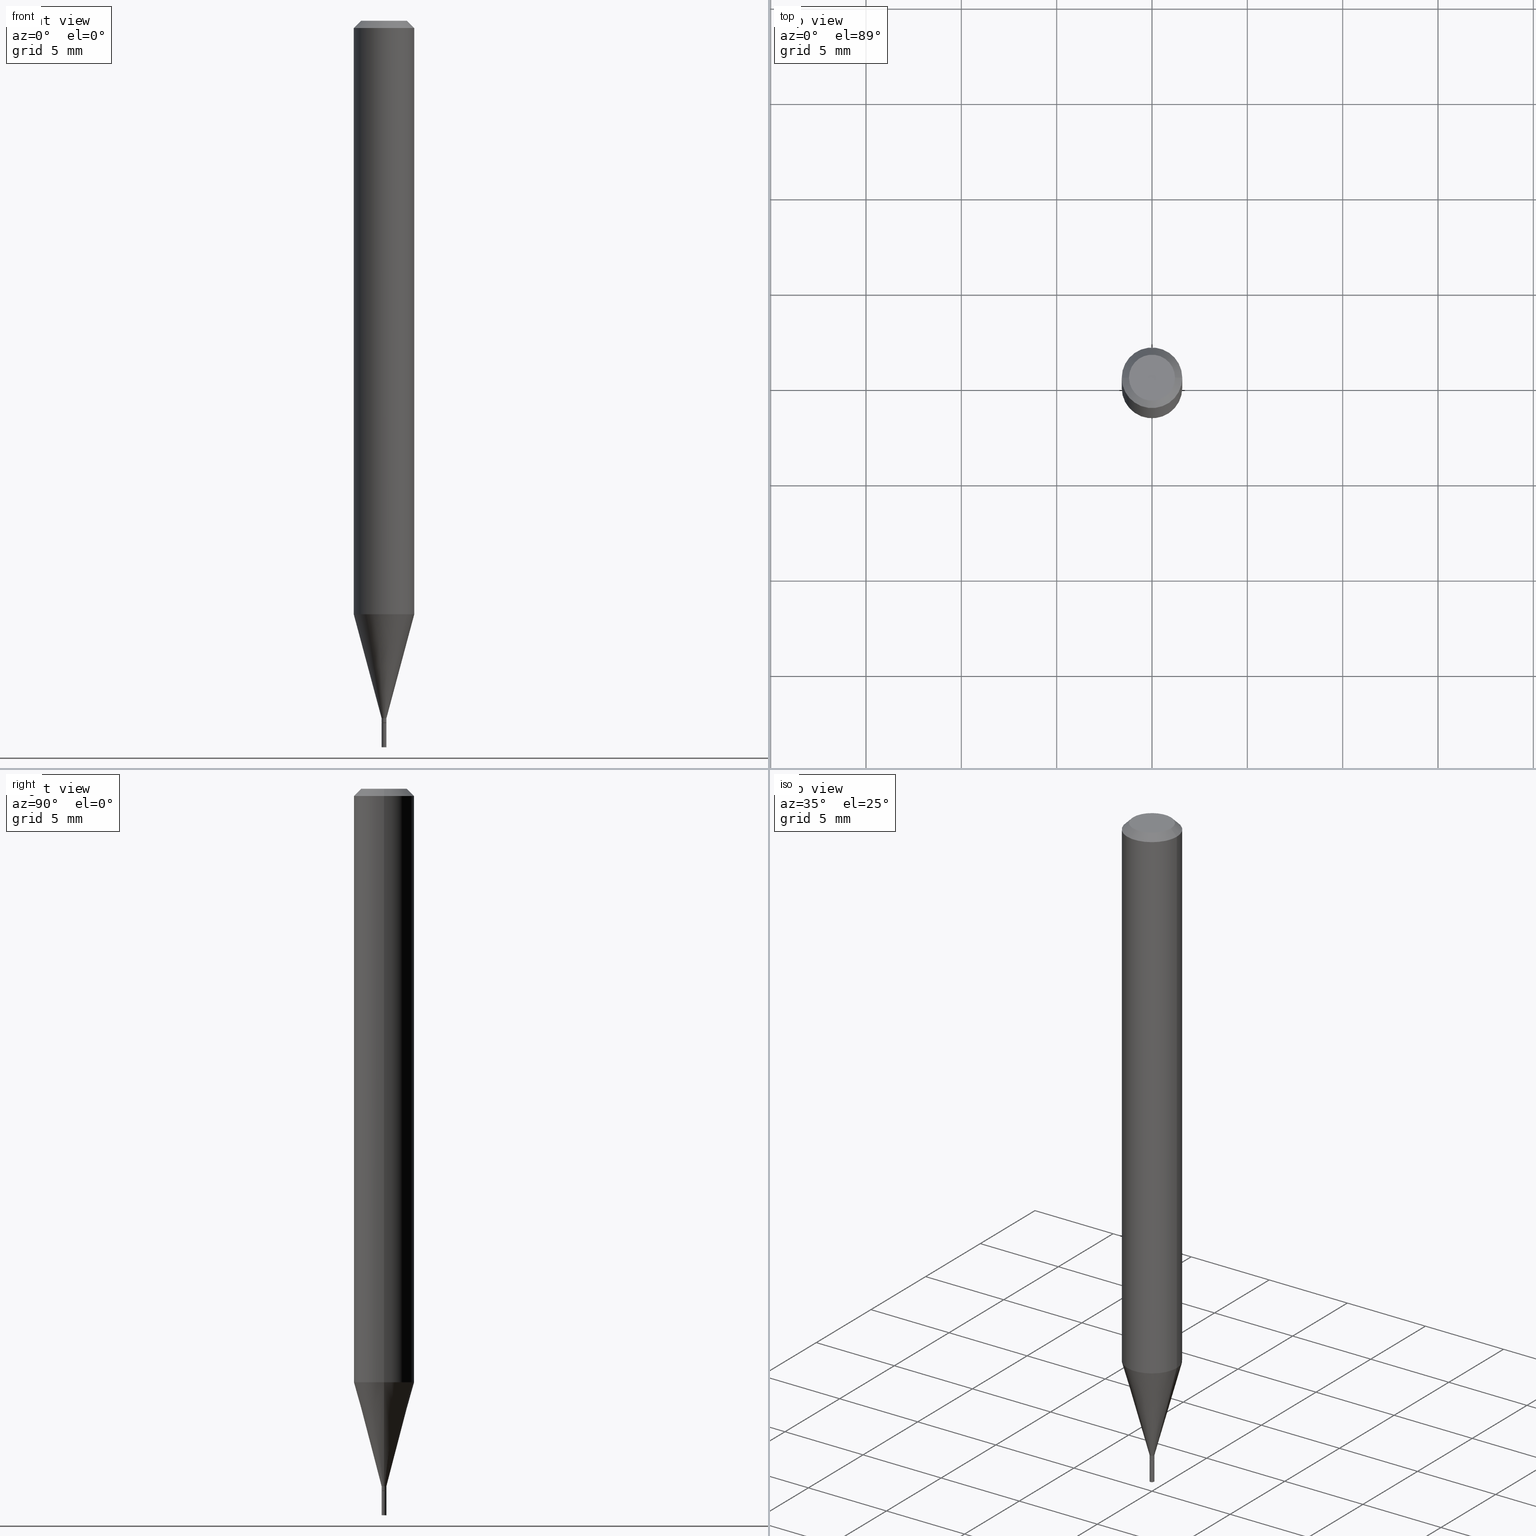
[diagram: canonical four-view strip — front | top / right | iso, engineering-drawing reading convention]
A machine part, canonical four-view strip (front | top / right | iso — engineering-drawing reading convention). The complete STEP part file that produces these views, byte-faithful:
ISO-10303-21;
HEADER;
FILE_DESCRIPTION (( 'STEP AP203' ),
    '1' );
FILE_NAME ('04182.STEP',
    '2024-03-14T17:13:21',
    ( '' ),
    ( '' ),
    'SwSTEP 2.0',
    'SolidWorks 2023',
    '' );
FILE_SCHEMA (( 'CONFIG_CONTROL_DESIGN' ));
ENDSEC;

DATA;
#1 = ORIENTED_EDGE ( 'NONE', *, *, #250, .F. ) ;
#2 = VERTEX_POINT ( 'NONE', #139 ) ;
#3 = CYLINDRICAL_SURFACE ( 'NONE', #430, 0.004999999999999784131 ) ;
#4 = ORIENTED_EDGE ( 'NONE', *, *, #323, .T. ) ;
#5 = CIRCLE ( 'NONE', #261, 0.004999999999999647955 ) ;
#6 = DIRECTION ( 'NONE',  ( -2.445468806185136877E-29, 3.491481338843145188E-15, 1.000000000000000000 ) ) ;
#7 = LOCAL_TIME ( 13, 13, 21.00000000000000000, #275 ) ;
#8 = SHAPE_DEFINITION_REPRESENTATION ( #113, #300 ) ;
#9 = VERTEX_POINT ( 'NONE', #212 ) ;
#10 = FACE_OUTER_BOUND ( 'NONE', #166, .T. ) ;
#11 = EDGE_LOOP ( 'NONE', ( #204, #305 ) ) ;
#12 = CARTESIAN_POINT ( 'NONE',  ( 0.000000000000000000, 0.000000000000000000, 0.000000000000000000 ) ) ;
#13 = CARTESIAN_POINT ( 'NONE',  ( 3.316907271900976096E-16, 0.04749999999999999362, -1.260221205212306812E-18 ) ) ;
#14 = VECTOR ( 'NONE', #334, 39.37007874015748854 ) ;
#15 = FACE_OUTER_BOUND ( 'NONE', #396, .T. ) ;
#16 =( NAMED_UNIT ( * ) SI_UNIT ( $, .STERADIAN. ) SOLID_ANGLE_UNIT ( ) );
#17 = CARTESIAN_POINT ( 'NONE',  ( 0.004999999999999997502, -5.272136821653149826E-15, -1.500000000000000222 ) ) ;
#18 = ADVANCED_FACE ( 'NONE', ( #324 ), #358, .F. ) ;
#19 = DIRECTION ( 'NONE',  ( -0.2588190451025217387, 5.211531920934551042E-15, 0.9659258262890679791 ) ) ;
#20 = CARTESIAN_POINT ( 'NONE',  ( 3.521475080906597305E-29, -5.027733127934130649E-15, -1.440000000000000169 ) ) ;
#21 = EDGE_CURVE ( 'NONE', #452, #183, #375, .T. ) ;
#22 = AXIS2_PLACEMENT_3D ( 'NONE', #451, #228, #331 ) ;
#23 = PLANE ( 'NONE',  #22 ) ;
#24 = APPROVAL_ROLE ( '' ) ;
#25 = ORIENTED_EDGE ( 'NONE', *, *, #107, .F. ) ;
#26 = LINE ( 'NONE', #192, #14 ) ;
#27 = DATE_AND_TIME ( #385, #220 ) ;
#28 = APPROVAL_STATUS ( 'not_yet_approved' ) ;
#29 = EDGE_LOOP ( 'NONE', ( #168, #105, #425, #57 ) ) ;
#30 = SECURITY_CLASSIFICATION_LEVEL ( 'unclassified' ) ;
#31 = ORIENTED_EDGE ( 'NONE', *, *, #263, .F. ) ;
#32 = ADVANCED_FACE ( 'NONE', ( #280 ), #393, .T. ) ;
#33 = AXIS2_PLACEMENT_3D ( 'NONE', #381, #133, #38 ) ;
#34 = VERTEX_POINT ( 'NONE', #142 ) ;
#35 = AXIS2_PLACEMENT_3D ( 'NONE', #138, #179, #39 ) ;
#36 = AXIS2_PLACEMENT_3D ( 'NONE', #338, #262, #159 ) ;
#37 = ORIENTED_EDGE ( 'NONE', *, *, #76, .T. ) ;
#38 = DIRECTION ( 'NONE',  ( 1.000000000000000000, -6.982962677686336130E-15, 0.000000000000000000 ) ) ;
#39 = DIRECTION ( 'NONE',  ( 1.000000000000000000, -6.982962677686267499E-15, 4.852736867747366768E-29 ) ) ;
#40 = CARTESIAN_POINT ( 'NONE',  ( -0.004999999999999997502, -5.114407838005635591E-15, -1.500000000000000222 ) ) ;
#41 = ORIENTED_EDGE ( 'NONE', *, *, #357, .F. ) ;
#42 = LINE ( 'NONE', #366, #246 ) ;
#43 = ORIENTED_EDGE ( 'NONE', *, *, #344, .F. ) ;
#44 = DIRECTION ( 'NONE',  ( -1.000000000000000000, 6.982962677686265922E-15, -4.876176775795935793E-29 ) ) ;
#45 = DIRECTION ( 'NONE',  ( 1.000000000000000000, -6.982962677686262766E-15, 0.000000000000000000 ) ) ;
#46 = EDGE_CURVE ( 'NONE', #462, #428, #251, .T. ) ;
#47 = CLOSED_SHELL ( 'NONE', ( #160, #18, #378, #292 ) ) ;
#48 = DIRECTION ( 'NONE',  ( 1.000000000000000000, -6.982962677686242256E-15, 0.000000000000000000 ) ) ;
#49 = CIRCLE ( 'NONE', #441, 0.004999999999999997502 ) ;
#50 = DIRECTION ( 'NONE',  ( -1.000000000000000000, 6.982962677686266711E-15, 0.000000000000000000 ) ) ;
#51 = CARTESIAN_POINT ( 'NONE',  ( 3.545929768968448850E-29, -5.062647941322561509E-15, -1.450000000000000178 ) ) ;
#52 = DIRECTION ( 'NONE',  ( -2.445468806185136597E-29, 3.491481338843145583E-15, 1.000000000000000000 ) ) ;
#53 = AXIS2_PLACEMENT_3D ( 'NONE', #13, #294, #44 ) ;
#54 = PERSON_AND_ORGANIZATION ( #372, #241 ) ;
#55 = VERTEX_POINT ( 'NONE', #121 ) ;
#56 = CARTESIAN_POINT ( 'NONE',  ( 3.668203209277705088E-31, -5.237222008264718399E-17, -0.01499999999999999944 ) ) ;
#57 = ORIENTED_EDGE ( 'NONE', *, *, #124, .F. ) ;
#58 = CARTESIAN_POINT ( 'NONE',  ( 3.545929768968448850E-29, -5.062647941322561509E-15, -1.450000000000000178 ) ) ;
#59 = PERSON_AND_ORGANIZATION ( #372, #241 ) ;
#60 = VERTEX_POINT ( 'NONE', #411 ) ;
#61 = PERSON_AND_ORGANIZATION_ROLE ( 'design_supplier' ) ;
#62 = DATE_AND_TIME ( #97, #137 ) ;
#63 = ORIENTED_EDGE ( 'NONE', *, *, #46, .F. ) ;
#64 = DIRECTION ( 'NONE',  ( 1.000000000000000000, -6.982962677686266711E-15, 4.876176775795935793E-29 ) ) ;
#65 = EDGE_LOOP ( 'NONE', ( #37, #239, #380, #63 ) ) ;
#66 = CARTESIAN_POINT ( 'NONE',  ( 0.04749999999999999362, -4.035134999187572707E-16, 3.291702847796767504E-16 ) ) ;
#67 = ORIENTED_EDGE ( 'NONE', *, *, #93, .F. ) ;
#68 = DESIGN_CONTEXT ( 'detailed design', #149, 'design' ) ;
#69 = VERTEX_POINT ( 'NONE', #235 ) ;
#70 = CARTESIAN_POINT ( 'NONE',  ( 3.521475080906597305E-29, -5.027733127934130649E-15, -1.440000000000000169 ) ) ;
#71 = EDGE_LOOP ( 'NONE', ( #243, #128, #1, #337 ) ) ;
#72 = DIRECTION ( 'NONE',  ( -2.445468806185136597E-29, 3.491481338843145583E-15, 1.000000000000000000 ) ) ;
#73 = COORDINATED_UNIVERSAL_TIME_OFFSET ( 5, 0, .BEHIND. ) ;
#74 = ORIENTED_EDGE ( 'NONE', *, *, #319, .F. ) ;
#75 = DIRECTION ( 'NONE',  ( -2.445468806185136597E-29, 3.491481338843145583E-15, 1.000000000000000000 ) ) ;
#76 = EDGE_CURVE ( 'NONE', #462, #248, #345, .T. ) ;
#77 = DIRECTION ( 'NONE',  ( -2.445468806185136597E-29, 3.491481338843145583E-15, 1.000000000000000000 ) ) ;
#78 = PLANE ( 'NONE',  #53 ) ;
#79 = ADVANCED_FACE ( 'NONE', ( #384 ), #255, .T. ) ;
#80 = CARTESIAN_POINT ( 'NONE',  ( 0.000000000000000000, 0.000000000000000000, 0.000000000000000000 ) ) ;
#81 = AXIS2_PLACEMENT_3D ( 'NONE', #70, #214, #437 ) ;
#82 = PRODUCT_DEFINITION_FORMATION_WITH_SPECIFIED_SOURCE ( 'ANY', '', #213, .NOT_KNOWN. ) ;
#83 = CARTESIAN_POINT ( 'NONE',  ( 0.000000000000000000, 0.000000000000000000, 0.000000000000000000 ) ) ;
#84 = DIRECTION ( 'NONE',  ( -2.445468806185136597E-29, 3.491481338843145583E-15, 1.000000000000000000 ) ) ;
#85 = DATE_AND_TIME ( #420, #413 ) ;
#86 = FACE_OUTER_BOUND ( 'NONE', #29, .T. ) ;
#87 = VECTOR ( 'NONE', #270, 39.37007874015748854 ) ;
#88 = AXIS2_PLACEMENT_3D ( 'NONE', #260, #299, #408 ) ;
#89 = ORIENTED_EDGE ( 'NONE', *, *, #244, .T. ) ;
#90 = DIRECTION ( 'NONE',  ( 1.000000000000000000, -6.982962677686250144E-15, 0.000000000000000000 ) ) ;
#91 = APPROVAL_DATE_TIME ( #389, #312 ) ;
#92 = ORIENTED_EDGE ( 'NONE', *, *, #124, .T. ) ;
#93 = EDGE_CURVE ( 'NONE', #308, #311, #440, .T. ) ;
#94 = COORDINATED_UNIVERSAL_TIME_OFFSET ( 5, 0, .BEHIND. ) ;
#95 = ORIENTED_EDGE ( 'NONE', *, *, #335, .F. ) ;
#96 = CC_DESIGN_PERSON_AND_ORGANIZATION_ASSIGNMENT ( #122, #265, ( #82 ) ) ;
#97 = CALENDAR_DATE ( 2024, 14, 3 ) ;
#98 = VERTEX_POINT ( 'NONE', #439 ) ;
#99 = DIRECTION ( 'NONE',  ( 1.000000000000000000, -6.982962677686265922E-15, 4.876176775795935793E-29 ) ) ;
#100 = CARTESIAN_POINT ( 'NONE',  ( 3.576687321579069994E-29, -5.368277968210015545E-15, -1.500000000000000222 ) ) ;
#101 = DIRECTION ( 'NONE',  ( -2.445468806185136597E-29, 3.491481338843145583E-15, 1.000000000000000000 ) ) ;
#102 = VECTOR ( 'NONE', #288, 39.37007874015748143 ) ;
#103 = EDGE_CURVE ( 'NONE', #452, #55, #368, .T. ) ;
#104 = CARTESIAN_POINT ( 'NONE',  ( -0.06250000000000000000, 3.840629472727444916E-16, -0.01499999999999999944 ) ) ;
#105 = ORIENTED_EDGE ( 'NONE', *, *, #238, .T. ) ;
#106 = DIRECTION ( 'NONE',  ( 1.000000000000000000, -6.982962677686250144E-15, 0.000000000000000000 ) ) ;
#107 = EDGE_CURVE ( 'NONE', #2, #98, #231, .T. ) ;
#108 = ORIENTED_EDGE ( 'NONE', *, *, #323, .F. ) ;
#109 = DIRECTION ( 'NONE',  ( -2.445468806185136597E-29, 3.491481338843145583E-15, 1.000000000000000000 ) ) ;
#110 = EDGE_CURVE ( 'NONE', #248, #60, #325, .T. ) ;
#111 =( CONVERSION_BASED_UNIT ( 'INCH', #339 ) LENGTH_UNIT ( ) NAMED_UNIT ( #266 ) );
#112 = AXIS2_PLACEMENT_3D ( 'NONE', #399, #75, #397 ) ;
#113 = PRODUCT_DEFINITION_SHAPE ( 'NONE', 'NONE',  #129 ) ;
#114 = CARTESIAN_POINT ( 'NONE',  ( 3.668203209277705088E-31, -5.237222008264718399E-17, -0.01499999999999999944 ) ) ;
#115 = DIRECTION ( 'NONE',  ( -2.445468806185136877E-29, 3.491481338843145188E-15, 1.000000000000000000 ) ) ;
#116 = DIRECTION ( 'NONE',  ( 2.445468806185136597E-29, -3.491481338843145583E-15, -1.000000000000000000 ) ) ;
#117 = ADVANCED_FACE ( 'NONE', ( #140 ), #346, .T. ) ;
#118 = CARTESIAN_POINT ( 'NONE',  ( 0.004999999999999920307, -5.095817014041570866E-15, -1.449500000000000233 ) ) ;
#119 = CONICAL_SURFACE ( 'NONE', #363, 0.06250000000000000000, 0.7853981633974373988 ) ;
#120 = CARTESIAN_POINT ( 'NONE',  ( -0.004999999999999920307, -5.025375063865134965E-15, -1.449500000000000233 ) ) ;
#121 = CARTESIAN_POINT ( 'NONE',  ( 0.06250000000000000000, -4.888073874380388472E-16, -0.01499999999999999944 ) ) ;
#122 = PERSON_AND_ORGANIZATION ( #372, #241 ) ;
#123 = DIRECTION ( 'NONE',  ( 1.000000000000000000, -6.982962677686336130E-15, 0.000000000000000000 ) ) ;
#124 = EDGE_CURVE ( 'NONE', #34, #55, #422, .T. ) ;
#125 = ORIENTED_EDGE ( 'NONE', *, *, #432, .F. ) ;
#126 = DIRECTION ( 'NONE',  ( -2.445468806185136597E-29, 3.491481338843145583E-15, 1.000000000000000000 ) ) ;
#127 = AXIS2_PLACEMENT_3D ( 'NONE', #150, #402, #283 ) ;
#128 = ORIENTED_EDGE ( 'NONE', *, *, #357, .T. ) ;
#129 = PRODUCT_DEFINITION ( 'UNKNOWN', '', #82, #68 ) ;
#130 = PERSON_AND_ORGANIZATION ( #372, #241 ) ;
#131 = EDGE_LOOP ( 'NONE', ( #434, #125, #89, #92 ) ) ;
#132 = DIRECTION ( 'NONE',  ( -2.438088387897960049E-29, 3.491481338843145188E-15, 1.000000000000000000 ) ) ;
#133 = DIRECTION ( 'NONE',  ( -2.445468806185136597E-29, 3.491481338843145583E-15, 1.000000000000000000 ) ) ;
#134 = AXIS2_PLACEMENT_3D ( 'NONE', #100, #281, #148 ) ;
#135 = DATE_AND_TIME ( #278, #165 ) ;
#136 = ORIENTED_EDGE ( 'NONE', *, *, #188, .T. ) ;
#137 = LOCAL_TIME ( 13, 13, 21.00000000000000000, #310 ) ;
#138 = CARTESIAN_POINT ( 'NONE',  ( -8.049756633517713463E-45, 1.149291906609916432E-30, 3.291702847796741866E-16 ) ) ;
#139 = CARTESIAN_POINT ( 'NONE',  ( 0.06250000000000000000, -4.714921114650650089E-15, -1.225407078564789254 ) ) ;
#140 = FACE_OUTER_BOUND ( 'NONE', #417, .T. ) ;
#141 = AXIS2_PLACEMENT_3D ( 'NONE', #289, #101, #176 ) ;
#142 = CARTESIAN_POINT ( 'NONE',  ( -0.06250000000000000000, -1.721339873838890133E-15, -0.01499999999999999944 ) ) ;
#143 = CIRCLE ( 'NONE', #180, 0.004999999999999920307 ) ;
#144 = DIRECTION ( 'NONE',  ( 1.000000000000000000, -6.982962677686231212E-15, 0.000000000000000000 ) ) ;
#145 = APPROVAL_DATE_TIME ( #135, #193 ) ;
#146 = DIRECTION ( 'NONE',  ( -2.445468806185136877E-29, 3.491481338843145188E-15, 1.000000000000000000 ) ) ;
#147 = CARTESIAN_POINT ( 'NONE',  ( 0.004499999999999996191, -5.094071273372149362E-15, -1.450000000000000178 ) ) ;
#148 = DIRECTION ( 'NONE',  ( 1.000000000000000000, -6.982962677686265922E-15, 4.876176775795935793E-29 ) ) ;
#149 = APPLICATION_CONTEXT ( 'configuration controlled 3d designs of mechanical parts and assemblies' ) ;
#150 = CARTESIAN_POINT ( 'NONE',  ( 2.996694785508651364E-29, -4.278485947295258420E-15, -1.225407078564789254 ) ) ;
#151 = AXIS2_PLACEMENT_3D ( 'NONE', #374, #225, #123 ) ;
#152 = APPROVAL_PERSON_ORGANIZATION ( #456, #312, #349 ) ;
#153 = DIRECTION ( 'NONE',  ( -2.445468806185136597E-29, 3.491481338843145583E-15, 1.000000000000000000 ) ) ;
#154 = CARTESIAN_POINT ( 'NONE',  ( 3.521475080906597305E-29, -5.027733127934130649E-15, -1.440000000000000169 ) ) ;
#155 = FACE_OUTER_BOUND ( 'NONE', #131, .T. ) ;
#156 = CIRCLE ( 'NONE', #112, 0.004999999999999997502 ) ;
#157 = CC_DESIGN_APPROVAL ( #330, ( #129 ) ) ;
#158 = APPLICATION_PROTOCOL_DEFINITION ( 'international standard', 'config_control_design', 1994, #149 ) ;
#159 = DIRECTION ( 'NONE',  ( 1.000000000000000000, -6.982962677686231212E-15, 0.000000000000000000 ) ) ;
#160 = ADVANCED_FACE ( 'NONE', ( #252 ), #359, .T. ) ;
#161 = DIRECTION ( 'NONE',  ( 1.000000000000000000, -6.982962677686336130E-15, 0.000000000000000000 ) ) ;
#162 = ADVANCED_FACE ( 'NONE', ( #10 ), #387, .T. ) ;
#163 = CARTESIAN_POINT ( 'NONE',  ( 0.004999999999999997502, -5.097562754710993158E-15, -1.450000000000000178 ) ) ;
#164 = AXIS2_PLACEMENT_3D ( 'NONE', #154, #296, #48 ) ;
#165 = LOCAL_TIME ( 13, 13, 21.00000000000000000, #73 ) ;
#166 = EDGE_LOOP ( 'NONE', ( #412, #457, #313, #108 ) ) ;
#167 = PERSON_AND_ORGANIZATION ( #372, #241 ) ;
#168 = ORIENTED_EDGE ( 'NONE', *, *, #188, .F. ) ;
#169 = EDGE_LOOP ( 'NONE', ( #301, #394, #25, #31 ) ) ;
#170 = ADVANCED_FACE ( 'NONE', ( #362 ), #78, .F. ) ;
#171 = AXIS2_PLACEMENT_3D ( 'NONE', #207, #388, #203 ) ;
#172 = CIRCLE ( 'NONE', #81, 0.004999999999999647955 ) ;
#173 = ORIENTED_EDGE ( 'NONE', *, *, #190, .T. ) ;
#174 = ORIENTED_EDGE ( 'NONE', *, *, #238, .F. ) ;
#175 = CARTESIAN_POINT ( 'NONE',  ( -0.06250000000000000000, 4.440892098500626162E-16, -3.074334431409316114E-30 ) ) ;
#176 = DIRECTION ( 'NONE',  ( 1.000000000000000000, -6.982962677686267499E-15, 4.876176775795936353E-29 ) ) ;
#177 = CARTESIAN_POINT ( 'NONE',  ( 3.544707034565356049E-29, -5.060902200653140005E-15, -1.449500000000000233 ) ) ;
#178 = VECTOR ( 'NONE', #322, 39.37007874015748143 ) ;
#179 = DIRECTION ( 'NONE',  ( -2.445468806185136597E-29, 3.491481338843145583E-15, 1.000000000000000000 ) ) ;
#180 = AXIS2_PLACEMENT_3D ( 'NONE', #414, #126, #90 ) ;
#181 = EDGE_CURVE ( 'NONE', #428, #60, #156, .T. ) ;
#182 = LINE ( 'NONE', #184, #376 ) ;
#183 = VERTEX_POINT ( 'NONE', #395 ) ;
#184 = CARTESIAN_POINT ( 'NONE',  ( 0.004999999999999784131, -3.491481338842983102E-17, 2.438088387897862887E-31 ) ) ;
#185 = CARTESIAN_POINT ( 'NONE',  ( 3.545929768968448850E-29, -5.062647941322561509E-15, -1.450000000000000178 ) ) ;
#186 = AXIS2_PLACEMENT_3D ( 'NONE', #51, #377, #332 ) ;
#187 = DIRECTION ( 'NONE',  ( 0.2588190451025217387, 1.565188264969619207E-15, 0.9659258262890679791 ) ) ;
#188 = EDGE_CURVE ( 'NONE', #98, #34, #217, .T. ) ;
#189 = FACE_OUTER_BOUND ( 'NONE', #318, .T. ) ;
#190 = EDGE_CURVE ( 'NONE', #308, #69, #182, .T. ) ;
#191 = CARTESIAN_POINT ( 'NONE',  ( -0.004499999999999996191, -5.030673518213356578E-15, -1.450000000000000178 ) ) ;
#192 = CARTESIAN_POINT ( 'NONE',  ( 0.004499999999999996191, -5.094071273372149362E-15, -1.450000000000000178 ) ) ;
#193 = APPROVAL ( #336, 'UNSPECIFIED' ) ;
#194 = VECTOR ( 'NONE', #187, 39.37007874015748854 ) ;
#195 = ORIENTED_EDGE ( 'NONE', *, *, #361, .T. ) ;
#196 = FACE_OUTER_BOUND ( 'NONE', #169, .T. ) ;
#197 = PERSON_AND_ORGANIZATION ( #372, #241 ) ;
#198 = CC_DESIGN_DATE_AND_TIME_ASSIGNMENT ( #62, #229, ( #364 ) ) ;
#199 = APPROVAL_STATUS ( 'not_yet_approved' ) ;
#200 = ORIENTED_EDGE ( 'NONE', *, *, #103, .T. ) ;
#201 = AXIS2_PLACEMENT_3D ( 'NONE', #177, #77, #106 ) ;
#202 = COORDINATED_UNIVERSAL_TIME_OFFSET ( 5, 0, .BEHIND. ) ;
#203 = DIRECTION ( 'NONE',  ( -1.000000000000000000, 6.982962677686266711E-15, 0.000000000000000000 ) ) ;
#204 = ORIENTED_EDGE ( 'NONE', *, *, #76, .F. ) ;
#205 = ORIENTED_EDGE ( 'NONE', *, *, #110, .F. ) ;
#206 = CC_DESIGN_PERSON_AND_ORGANIZATION_ASSIGNMENT ( #236, #61, ( #82 ) ) ;
#207 = CARTESIAN_POINT ( 'NONE',  ( 3.668203209277705088E-31, -5.237222008264718399E-17, -0.01499999999999999944 ) ) ;
#208 = AXIS2_PLACEMENT_3D ( 'NONE', #185, #153, #249 ) ;
#209 = CC_DESIGN_APPROVAL ( #312, ( #82 ) ) ;
#210 = ORIENTED_EDGE ( 'NONE', *, *, #304, .T. ) ;
#211 = EDGE_CURVE ( 'NONE', #2, #55, #42, .T. ) ;
#212 = CARTESIAN_POINT ( 'NONE',  ( -0.004499999999999996191, -5.028024291039245377E-15, -1.450000000000000178 ) ) ;
#213 = PRODUCT ( '04182', '04182', '', ( #342 ) ) ;
#214 = DIRECTION ( 'NONE',  ( -2.445468806185136597E-29, 3.491481338843145583E-15, 1.000000000000000000 ) ) ;
#215 = ORIENTED_EDGE ( 'NONE', *, *, #107, .T. ) ;
#216 = ADVANCED_FACE ( 'NONE', ( #221 ), #3, .T. ) ;
#217 = LINE ( 'NONE', #175, #219 ) ;
#218 = ORIENTED_EDGE ( 'NONE', *, *, #432, .T. ) ;
#219 = VECTOR ( 'NONE', #401, 39.37007874015748143 ) ;
#220 = LOCAL_TIME ( 13, 13, 21.00000000000000000, #94 ) ;
#221 = FACE_OUTER_BOUND ( 'NONE', #71, .T. ) ;
#222 = CARTESIAN_POINT ( 'NONE',  ( 0.000000000000000000, 0.000000000000000000, 0.000000000000000000 ) ) ;
#223 = DIRECTION ( 'NONE',  ( -2.445468806185136597E-29, 3.491481338843145583E-15, 1.000000000000000000 ) ) ;
#224 = AXIS2_PLACEMENT_3D ( 'NONE', #20, #298, #302 ) ;
#225 = DIRECTION ( 'NONE',  ( -2.445468806185136597E-29, 3.491481338843145583E-15, 1.000000000000000000 ) ) ;
#226 = CARTESIAN_POINT ( 'NONE',  ( -0.004999999999999647955, -4.992205991146127974E-15, -1.440000000000000169 ) ) ;
#227 = CC_DESIGN_PERSON_AND_ORGANIZATION_ASSIGNMENT ( #59, #450, ( #213 ) ) ;
#228 = DIRECTION ( 'NONE',  ( 2.438088387897960049E-29, -3.491481338843145188E-15, -1.000000000000000000 ) ) ;
#229 = DATE_TIME_ROLE ( 'classification_date' ) ;
#230 = ORIENTED_EDGE ( 'NONE', *, *, #46, .T. ) ;
#231 = CIRCLE ( 'NONE', #353, 0.06250000000000000000 ) ;
#232 = CYLINDRICAL_SURFACE ( 'NONE', #256, 0.06250000000000000000 ) ;
#233 = CIRCLE ( 'NONE', #88, 0.06250000000000000000 ) ;
#234 = LINE ( 'NONE', #226, #277 ) ;
#235 = CARTESIAN_POINT ( 'NONE',  ( 0.004999999999999647955, -5.062647941322559142E-15, -1.440000000000000169 ) ) ;
#236 = PERSON_AND_ORGANIZATION ( #372, #241 ) ;
#237 = VERTEX_POINT ( 'NONE', #147 ) ;
#238 = EDGE_CURVE ( 'NONE', #98, #2, #400, .T. ) ;
#239 = ORIENTED_EDGE ( 'NONE', *, *, #110, .T. ) ;
#240 = AXIS2_PLACEMENT_3D ( 'NONE', #309, #390, #64 ) ;
#241 = ORGANIZATION ( 'UNSPECIFIED', 'UNSPECIFIED', '' ) ;
#242 = CYLINDRICAL_SURFACE ( 'NONE', #240, 0.06250000000000000000 ) ;
#243 = ORIENTED_EDGE ( 'NONE', *, *, #93, .T. ) ;
#244 = EDGE_CURVE ( 'NONE', #183, #34, #431, .T. ) ;
#245 = ORIENTED_EDGE ( 'NONE', *, *, #415, .F. ) ;
#246 = VECTOR ( 'NONE', #115, 39.37007874015748143 ) ;
#247 = CC_DESIGN_SECURITY_CLASSIFICATION ( #364, ( #82 ) ) ;
#248 = VERTEX_POINT ( 'NONE', #40 ) ;
#249 = DIRECTION ( 'NONE',  ( 1.000000000000000000, -6.982962677686231212E-15, 0.000000000000000000 ) ) ;
#250 = EDGE_CURVE ( 'NONE', #69, #272, #172, .T. ) ;
#251 = LINE ( 'NONE', #321, #463 ) ;
#252 = FACE_OUTER_BOUND ( 'NONE', #65, .T. ) ;
#253 = ORIENTED_EDGE ( 'NONE', *, *, #263, .T. ) ;
#254 = DIRECTION ( 'NONE',  ( -2.445468806185136877E-29, 3.491481338843145188E-15, 1.000000000000000000 ) ) ;
#255 = CONICAL_SURFACE ( 'NONE', #171, 0.06250000000000000000, 0.7853981633974373988 ) ;
#256 = AXIS2_PLACEMENT_3D ( 'NONE', #83, #52, #371 ) ;
#257 = CARTESIAN_POINT ( 'NONE',  ( 3.545929768968448850E-29, -5.062647941322561509E-15, -1.450000000000000178 ) ) ;
#258 =( LENGTH_UNIT ( ) NAMED_UNIT ( * ) SI_UNIT ( $, .METRE. ) );
#259 = DIRECTION ( 'NONE',  ( 1.000000000000000000, -6.982962677686267499E-15, 4.876176775795936353E-29 ) ) ;
#260 = CARTESIAN_POINT ( 'NONE',  ( 3.668203209277705088E-31, -5.237222008264718399E-17, -0.01499999999999999944 ) ) ;
#261 = AXIS2_PLACEMENT_3D ( 'NONE', #392, #276, #423 ) ;
#262 = DIRECTION ( 'NONE',  ( -2.445468806185136597E-29, 3.491481338843145583E-15, 1.000000000000000000 ) ) ;
#263 = EDGE_CURVE ( 'NONE', #69, #2, #444, .T. ) ;
#264 = CARTESIAN_POINT ( 'NONE',  ( 3.668203209277704895E-29, -5.237222008264718177E-15, -1.500000000000000222 ) ) ;
#265 = PERSON_AND_ORGANIZATION_ROLE ( 'creator' ) ;
#266 = DIMENSIONAL_EXPONENTS ( 1.000000000000000000, 0.000000000000000000, 0.000000000000000000, 0.000000000000000000, 0.000000000000000000, 0.000000000000000000, 0.000000000000000000 ) ;
#267 = DIRECTION ( 'NONE',  ( -2.445468806185136597E-29, 3.491481338843145583E-15, 1.000000000000000000 ) ) ;
#268 = EDGE_LOOP ( 'NONE', ( #41, #4, #173, #436 ) ) ;
#269 = CIRCLE ( 'NONE', #186, 0.004499999999999996191 ) ;
#270 = DIRECTION ( 'NONE',  ( -0.7071067811865647812, 7.493145998870415691E-15, 0.7071067811865301422 ) ) ;
#271 = DATE_TIME_ROLE ( 'creation_date' ) ;
#272 = VERTEX_POINT ( 'NONE', #329 ) ;
#273 = PRODUCT_RELATED_PRODUCT_CATEGORY ( 'detail', '', ( #213 ) ) ;
#274 = CARTESIAN_POINT ( 'NONE',  ( 0.000000000000000000, 0.000000000000000000, 0.000000000000000000 ) ) ;
#275 = COORDINATED_UNIVERSAL_TIME_OFFSET ( 5, 0, .BEHIND. ) ;
#276 = DIRECTION ( 'NONE',  ( -2.445468806185136597E-29, 3.491481338843145583E-15, 1.000000000000000000 ) ) ;
#277 = VECTOR ( 'NONE', #19, 39.37007874015748854 ) ;
#278 = CALENDAR_DATE ( 2024, 14, 3 ) ;
#279 = ORIENTED_EDGE ( 'NONE', *, *, #21, .F. ) ;
#280 = FACE_OUTER_BOUND ( 'NONE', #268, .T. ) ;
#281 = DIRECTION ( 'NONE',  ( -2.438088387897960049E-29, 3.491481338843145188E-15, 1.000000000000000000 ) ) ;
#282 = ADVANCED_FACE ( 'NONE', ( #155 ), #119, .T. ) ;
#283 = DIRECTION ( 'NONE',  ( 1.000000000000000000, -6.982962677686262766E-15, 0.000000000000000000 ) ) ;
#284 = AXIS2_PLACEMENT_3D ( 'NONE', #383, #427, #424 ) ;
#285 = EDGE_LOOP ( 'NONE', ( #352, #74 ) ) ;
#286 = DIRECTION ( 'NONE',  ( -2.445468806185136597E-29, 3.491481338843145583E-15, 1.000000000000000000 ) ) ;
#287 = EDGE_LOOP ( 'NONE', ( #215, #136, #95, #356 ) ) ;
#288 = DIRECTION ( 'NONE',  ( -0.7071067811865398012, 2.468850131082175808E-15, -0.7071067811865552333 ) ) ;
#289 = CARTESIAN_POINT ( 'NONE',  ( 0.000000000000000000, 0.000000000000000000, 0.000000000000000000 ) ) ;
#290 = CARTESIAN_POINT ( 'NONE',  ( 2.996694785508651364E-29, -4.278485947295258420E-15, -1.225407078564789254 ) ) ;
#291 = CONICAL_SURFACE ( 'NONE', #164, 0.004999999999999647955, 0.2617993877991504625 ) ;
#292 = ADVANCED_FACE ( 'NONE', ( #189 ), #23, .F. ) ;
#293 = AXIS2_PLACEMENT_3D ( 'NONE', #222, #442, #435 ) ;
#294 = DIRECTION ( 'NONE',  ( 2.438088387897960049E-29, -3.491481338843145188E-15, -1.000000000000000000 ) ) ;
#295 = DIRECTION ( 'NONE',  ( -2.445468806185136877E-29, 3.491481338843145188E-15, 1.000000000000000000 ) ) ;
#296 = DIRECTION ( 'NONE',  ( -2.445468806185136597E-29, 3.491481338843145583E-15, 1.000000000000000000 ) ) ;
#297 = VECTOR ( 'NONE', #6, 39.37007874015748143 ) ;
#298 = DIRECTION ( 'NONE',  ( -2.445468806185136597E-29, 3.491481338843145583E-15, 1.000000000000000000 ) ) ;
#299 = DIRECTION ( 'NONE',  ( -2.445468806185136597E-29, 3.491481338843145583E-15, 1.000000000000000000 ) ) ;
#300 = ADVANCED_BREP_SHAPE_REPRESENTATION ( '04182', ( #461, #458, #306 ), #370 ) ;
#301 = ORIENTED_EDGE ( 'NONE', *, *, #250, .T. ) ;
#302 = DIRECTION ( 'NONE',  ( 1.000000000000000000, -6.982962677686242256E-15, 0.000000000000000000 ) ) ;
#303 = APPLICATION_CONTEXT ( 'configuration controlled 3d designs of mechanical parts and assemblies' ) ;
#304 = EDGE_CURVE ( 'NONE', #248, #462, #49, .T. ) ;
#305 = ORIENTED_EDGE ( 'NONE', *, *, #304, .F. ) ;
#306 = AXIS2_PLACEMENT_3D ( 'NONE', #274, #347, #419 ) ;
#307 = APPROVAL_DATE_TIME ( #27, #330 ) ;
#308 = VERTEX_POINT ( 'NONE', #118 ) ;
#309 = CARTESIAN_POINT ( 'NONE',  ( 0.000000000000000000, 0.000000000000000000, 0.000000000000000000 ) ) ;
#310 = COORDINATED_UNIVERSAL_TIME_OFFSET ( 5, 0, .BEHIND. ) ;
#311 = VERTEX_POINT ( 'NONE', #120 ) ;
#312 = APPROVAL ( #199, 'UNSPECIFIED' ) ;
#313 = ORIENTED_EDGE ( 'NONE', *, *, #415, .T. ) ;
#314 = AXIS2_PLACEMENT_3D ( 'NONE', #257, #72, #144 ) ;
#315 = ORIENTED_EDGE ( 'NONE', *, *, #418, .T. ) ;
#316 = ORIENTED_EDGE ( 'NONE', *, *, #21, .T. ) ;
#317 = CARTESIAN_POINT ( 'NONE',  ( 0.06250000000000000000, -4.811533449433679005E-16, -0.01499999999999999944 ) ) ;
#318 = EDGE_LOOP ( 'NONE', ( #382, #360 ) ) ;
#319 = EDGE_CURVE ( 'NONE', #9, #237, #464, .T. ) ;
#320 = CARTESIAN_POINT ( 'NONE',  ( -0.004999999999999997502, 3.552713678800499154E-17, -2.459467545127451822E-31 ) ) ;
#321 = CARTESIAN_POINT ( 'NONE',  ( 0.004999999999999997502, -3.491481338843131630E-17, 2.438088387897967108E-31 ) ) ;
#322 = DIRECTION ( 'NONE',  ( 0.7071067811865398012, -7.319954787623229224E-15, -0.7071067811865552333 ) ) ;
#323 = EDGE_CURVE ( 'NONE', #311, #308, #143, .T. ) ;
#324 = FACE_OUTER_BOUND ( 'NONE', #11, .T. ) ;
#325 = LINE ( 'NONE', #320, #297 ) ;
#326 = CC_DESIGN_PERSON_AND_ORGANIZATION_ASSIGNMENT ( #167, #459, ( #364 ) ) ;
#327 = DIRECTION ( 'NONE',  ( 1.000000000000000000, -6.982962677686266711E-15, 0.000000000000000000 ) ) ;
#328 = CIRCLE ( 'NONE', #284, 0.04749999999999999362 ) ;
#329 = CARTESIAN_POINT ( 'NONE',  ( -0.004999999999999647955, -4.413301364295662283E-15, -1.440000000000000169 ) ) ;
#330 = APPROVAL ( #28, 'UNSPECIFIED' ) ;
#331 = DIRECTION ( 'NONE',  ( -1.000000000000000000, 6.982962677686265922E-15, -4.876176775795935793E-29 ) ) ;
#332 = DIRECTION ( 'NONE',  ( 1.000000000000000000, -6.982962677686231212E-15, 0.000000000000000000 ) ) ;
#333 = AXIS2_PLACEMENT_3D ( 'NONE', #80, #84, #410 ) ;
#334 = DIRECTION ( 'NONE',  ( 0.7071067811865647812, -2.468850131082438104E-15, 0.7071067811865301422 ) ) ;
#335 = EDGE_CURVE ( 'NONE', #55, #34, #233, .T. ) ;
#336 = APPROVAL_STATUS ( 'not_yet_approved' ) ;
#337 = ORIENTED_EDGE ( 'NONE', *, *, #190, .F. ) ;
#338 = CARTESIAN_POINT ( 'NONE',  ( 3.545929768968448850E-29, -5.062647941322561509E-15, -1.450000000000000178 ) ) ;
#339 = LENGTH_MEASURE_WITH_UNIT ( LENGTH_MEASURE( 0.02539999999999999897 ), #258 );
#340 = PERSON_AND_ORGANIZATION_ROLE ( 'creator' ) ;
#341 = FACE_OUTER_BOUND ( 'NONE', #285, .T. ) ;
#342 = MECHANICAL_CONTEXT ( 'NONE', #303, 'mechanical' ) ;
#343 = EDGE_LOOP ( 'NONE', ( #205, #210, #230, #398 ) ) ;
#344 = EDGE_CURVE ( 'NONE', #272, #98, #234, .T. ) ;
#345 = CIRCLE ( 'NONE', #33, 0.004999999999999997502 ) ;
#346 = CONICAL_SURFACE ( 'NONE', #314, 0.004499999999999996191, 0.7853981633974728149 ) ;
#347 = DIRECTION ( 'NONE',  ( 0.000000000000000000, 0.000000000000000000, 1.000000000000000000 ) ) ;
#348 = ADVANCED_FACE ( 'NONE', ( #15 ), #291, .T. ) ;
#349 = APPROVAL_ROLE ( '' ) ;
#350 = ORIENTED_EDGE ( 'NONE', *, *, #446, .T. ) ;
#351 = FACE_OUTER_BOUND ( 'NONE', #287, .T. ) ;
#352 = ORIENTED_EDGE ( 'NONE', *, *, #418, .F. ) ;
#353 = AXIS2_PLACEMENT_3D ( 'NONE', #290, #109, #45 ) ;
#354 = CIRCLE ( 'NONE', #151, 0.004999999999999997502 ) ;
#355 = APPROVAL_PERSON_ORGANIZATION ( #130, #330, #379 ) ;
#356 = ORIENTED_EDGE ( 'NONE', *, *, #211, .F. ) ;
#357 = EDGE_CURVE ( 'NONE', #311, #272, #406, .T. ) ;
#358 = PLANE ( 'NONE',  #134 ) ;
#359 = CYLINDRICAL_SURFACE ( 'NONE', #293, 0.004999999999999997502 ) ;
#360 = ORIENTED_EDGE ( 'NONE', *, *, #407, .T. ) ;
#361 = EDGE_CURVE ( 'NONE', #9, #311, #445, .T. ) ;
#362 = FACE_OUTER_BOUND ( 'NONE', #386, .T. ) ;
#363 = AXIS2_PLACEMENT_3D ( 'NONE', #56, #116, #50 ) ;
#364 = SECURITY_CLASSIFICATION ( '', '', #30 ) ;
#365 = ORIENTED_EDGE ( 'NONE', *, *, #335, .T. ) ;
#366 = CARTESIAN_POINT ( 'NONE',  ( 0.06250000000000000000, -4.364351673553916694E-16, 3.047610484872459871E-30 ) ) ;
#367 =( NAMED_UNIT ( * ) PLANE_ANGLE_UNIT ( ) SI_UNIT ( $, .RADIAN. ) );
#368 = LINE ( 'NONE', #317, #178 ) ;
#369 = VECTOR ( 'NONE', #295, 39.37007874015748143 ) ;
#370 =( GEOMETRIC_REPRESENTATION_CONTEXT ( 3 ) GLOBAL_UNCERTAINTY_ASSIGNED_CONTEXT ( ( #438 ) ) GLOBAL_UNIT_ASSIGNED_CONTEXT ( ( #111, #367, #16 ) ) REPRESENTATION_CONTEXT ( 'NONE', 'WORKASPACE' ) );
#371 = DIRECTION ( 'NONE',  ( 1.000000000000000000, -6.982962677686266711E-15, 4.876176775795935793E-29 ) ) ;
#372 = PERSON ( 'UNSPECIFIED', 'UNSPECIFIED', 'UNSPECIFIED', ('UNSPECIFIED'), ('UNSPECIFIED'), ('UNSPECIFIED') ) ;
#373 = CYLINDRICAL_SURFACE ( 'NONE', #333, 0.004999999999999997502 ) ;
#374 = CARTESIAN_POINT ( 'NONE',  ( 3.545929768968448850E-29, -5.062647941322561509E-15, -1.450000000000000178 ) ) ;
#375 = CIRCLE ( 'NONE', #35, 0.04749999999999999362 ) ;
#376 = VECTOR ( 'NONE', #254, 39.37007874015748143 ) ;
#377 = DIRECTION ( 'NONE',  ( -2.445468806185136597E-29, 3.491481338843145583E-15, 1.000000000000000000 ) ) ;
#378 = ADVANCED_FACE ( 'NONE', ( #453 ), #373, .T. ) ;
#379 = APPROVAL_ROLE ( '' ) ;
#380 = ORIENTED_EDGE ( 'NONE', *, *, #181, .F. ) ;
#381 = CARTESIAN_POINT ( 'NONE',  ( 3.668203209277704895E-29, -5.237222008264718177E-15, -1.500000000000000222 ) ) ;
#382 = ORIENTED_EDGE ( 'NONE', *, *, #181, .T. ) ;
#383 = CARTESIAN_POINT ( 'NONE',  ( -8.049756633517713463E-45, 1.149291906609916432E-30, 3.291702847796741866E-16 ) ) ;
#384 = FACE_OUTER_BOUND ( 'NONE', #421, .T. ) ;
#385 = CALENDAR_DATE ( 2024, 14, 3 ) ;
#386 = EDGE_LOOP ( 'NONE', ( #218, #316 ) ) ;
#387 = CONICAL_SURFACE ( 'NONE', #208, 0.004499999999999996191, 0.7853981633974728149 ) ;
#388 = DIRECTION ( 'NONE',  ( 2.445468806185136597E-29, -3.491481338843145583E-15, -1.000000000000000000 ) ) ;
#389 = DATE_AND_TIME ( #416, #7 ) ;
#390 = DIRECTION ( 'NONE',  ( -2.445468806185136597E-29, 3.491481338843145583E-15, 1.000000000000000000 ) ) ;
#391 = ORIENTED_EDGE ( 'NONE', *, *, #244, .F. ) ;
#392 = CARTESIAN_POINT ( 'NONE',  ( 3.521475080906597305E-29, -5.027733127934130649E-15, -1.440000000000000169 ) ) ;
#393 = CYLINDRICAL_SURFACE ( 'NONE', #141, 0.004999999999999784131 ) ;
#394 = ORIENTED_EDGE ( 'NONE', *, *, #344, .T. ) ;
#395 = CARTESIAN_POINT ( 'NONE',  ( -0.04749999999999999362, 3.578768372314216422E-16, 3.291702847796717707E-16 ) ) ;
#396 = EDGE_LOOP ( 'NONE', ( #43, #350, #253, #174 ) ) ;
#397 = DIRECTION ( 'NONE',  ( 1.000000000000000000, -6.982962677686336130E-15, 0.000000000000000000 ) ) ;
#398 = ORIENTED_EDGE ( 'NONE', *, *, #407, .F. ) ;
#399 = CARTESIAN_POINT ( 'NONE',  ( 3.545929768968448850E-29, -5.062647941322561509E-15, -1.450000000000000178 ) ) ;
#400 = CIRCLE ( 'NONE', #127, 0.06250000000000000000 ) ;
#401 = DIRECTION ( 'NONE',  ( -2.445468806185136877E-29, 3.491481338843145188E-15, 1.000000000000000000 ) ) ;
#402 = DIRECTION ( 'NONE',  ( -2.445468806185136597E-29, 3.491481338843145583E-15, 1.000000000000000000 ) ) ;
#403 = CARTESIAN_POINT ( 'NONE',  ( -0.004999999999999784131, 3.552713678800347545E-17, -2.459467545127347163E-31 ) ) ;
#404 = CC_DESIGN_DATE_AND_TIME_ASSIGNMENT ( #85, #271, ( #129 ) ) ;
#405 = AXIS2_PLACEMENT_3D ( 'NONE', #58, #132, #99 ) ;
#406 = LINE ( 'NONE', #403, #369 ) ;
#407 = EDGE_CURVE ( 'NONE', #60, #428, #354, .T. ) ;
#408 = DIRECTION ( 'NONE',  ( 1.000000000000000000, -6.982962677686266711E-15, 0.000000000000000000 ) ) ;
#409 = ADVANCED_FACE ( 'NONE', ( #86 ), #232, .T. ) ;
#410 = DIRECTION ( 'NONE',  ( 1.000000000000000000, -6.982962677686266711E-15, 4.876176775795936914E-29 ) ) ;
#411 = CARTESIAN_POINT ( 'NONE',  ( -0.004999999999999997502, -5.114407838005635591E-15, -1.450000000000000178 ) ) ;
#412 = ORIENTED_EDGE ( 'NONE', *, *, #361, .F. ) ;
#413 = LOCAL_TIME ( 13, 13, 21.00000000000000000, #202 ) ;
#414 = CARTESIAN_POINT ( 'NONE',  ( 3.544707034565356049E-29, -5.060902200653140005E-15, -1.449500000000000233 ) ) ;
#415 = EDGE_CURVE ( 'NONE', #237, #308, #26, .T. ) ;
#416 = CALENDAR_DATE ( 2024, 14, 3 ) ;
#417 = EDGE_LOOP ( 'NONE', ( #315, #195, #67, #245 ) ) ;
#418 = EDGE_CURVE ( 'NONE', #237, #9, #269, .T. ) ;
#419 = DIRECTION ( 'NONE',  ( 1.000000000000000000, 0.000000000000000000, 0.000000000000000000 ) ) ;
#420 = CALENDAR_DATE ( 2024, 14, 3 ) ;
#421 = EDGE_LOOP ( 'NONE', ( #279, #200, #365, #391 ) ) ;
#422 = CIRCLE ( 'NONE', #447, 0.06250000000000000000 ) ;
#423 = DIRECTION ( 'NONE',  ( 1.000000000000000000, -6.982962677686242256E-15, 0.000000000000000000 ) ) ;
#424 = DIRECTION ( 'NONE',  ( 1.000000000000000000, -6.982962677686267499E-15, 4.852736867747366768E-29 ) ) ;
#425 = ORIENTED_EDGE ( 'NONE', *, *, #211, .T. ) ;
#426 = ADVANCED_FACE ( 'NONE', ( #196 ), #455, .T. ) ;
#427 = DIRECTION ( 'NONE',  ( -2.445468806185136597E-29, 3.491481338843145583E-15, 1.000000000000000000 ) ) ;
#428 = VERTEX_POINT ( 'NONE', #163 ) ;
#429 = CLOSED_SHELL ( 'NONE', ( #216, #117, #79, #449, #426, #348, #409, #282, #170, #443, #162, #32 ) ) ;
#430 = AXIS2_PLACEMENT_3D ( 'NONE', #12, #223, #259 ) ;
#431 = LINE ( 'NONE', #104, #102 ) ;
#432 = EDGE_CURVE ( 'NONE', #183, #452, #328, .T. ) ;
#433 = CC_DESIGN_APPROVAL ( #193, ( #364 ) ) ;
#434 = ORIENTED_EDGE ( 'NONE', *, *, #103, .F. ) ;
#435 = DIRECTION ( 'NONE',  ( 1.000000000000000000, -6.982962677686266711E-15, 4.876176775795936914E-29 ) ) ;
#436 = ORIENTED_EDGE ( 'NONE', *, *, #446, .F. ) ;
#437 = DIRECTION ( 'NONE',  ( 1.000000000000000000, -6.982962677686242256E-15, 0.000000000000000000 ) ) ;
#438 = UNCERTAINTY_MEASURE_WITH_UNIT (LENGTH_MEASURE( 1.000000000000000082E-05 ), #111, 'distance_accuracy_value', 'NONE');
#439 = CARTESIAN_POINT ( 'NONE',  ( -0.06250000000000000000, -3.834396737445195804E-15, -1.225407078564789254 ) ) ;
#440 = CIRCLE ( 'NONE', #201, 0.004999999999999920307 ) ;
#441 = AXIS2_PLACEMENT_3D ( 'NONE', #264, #267, #161 ) ;
#442 = DIRECTION ( 'NONE',  ( -2.445468806185136597E-29, 3.491481338843145583E-15, 1.000000000000000000 ) ) ;
#443 = ADVANCED_FACE ( 'NONE', ( #341 ), #460, .F. ) ;
#444 = LINE ( 'NONE', #448, #194 ) ;
#445 = LINE ( 'NONE', #191, #87 ) ;
#446 = EDGE_CURVE ( 'NONE', #272, #69, #5, .T. ) ;
#447 = AXIS2_PLACEMENT_3D ( 'NONE', #114, #286, #327 ) ;
#448 = CARTESIAN_POINT ( 'NONE',  ( 0.004999999999999647955, -5.062647941322559142E-15, -1.440000000000000169 ) ) ;
#449 = ADVANCED_FACE ( 'NONE', ( #351 ), #242, .T. ) ;
#450 = PERSON_AND_ORGANIZATION_ROLE ( 'design_owner' ) ;
#451 = CARTESIAN_POINT ( 'NONE',  ( 3.491481338846677806E-17, 0.004999999999994935579, -1.450000000000000178 ) ) ;
#452 = VERTEX_POINT ( 'NONE', #66 ) ;
#453 = FACE_OUTER_BOUND ( 'NONE', #343, .T. ) ;
#454 = APPLICATION_PROTOCOL_DEFINITION ( 'international standard', 'config_control_design', 1994, #303 ) ;
#455 = CONICAL_SURFACE ( 'NONE', #224, 0.004999999999999647955, 0.2617993877991504625 ) ;
#456 = PERSON_AND_ORGANIZATION ( #372, #241 ) ;
#457 = ORIENTED_EDGE ( 'NONE', *, *, #319, .T. ) ;
#458 = MANIFOLD_SOLID_BREP ( 'Body-Move/Copy2[2]', #429 ) ;
#459 = PERSON_AND_ORGANIZATION_ROLE ( 'classification_officer' ) ;
#460 = PLANE ( 'NONE',  #405 ) ;
#461 = MANIFOLD_SOLID_BREP ( 'Body-Move/Copy2[1]', #47 ) ;
#462 = VERTEX_POINT ( 'NONE', #17 ) ;
#463 = VECTOR ( 'NONE', #146, 39.37007874015748143 ) ;
#464 = CIRCLE ( 'NONE', #36, 0.004499999999999996191 ) ;
#465 = APPROVAL_PERSON_ORGANIZATION ( #54, #193, #24 ) ;
#466 = CC_DESIGN_PERSON_AND_ORGANIZATION_ASSIGNMENT ( #197, #340, ( #129 ) ) ;
ENDSEC;
END-ISO-10303-21;
